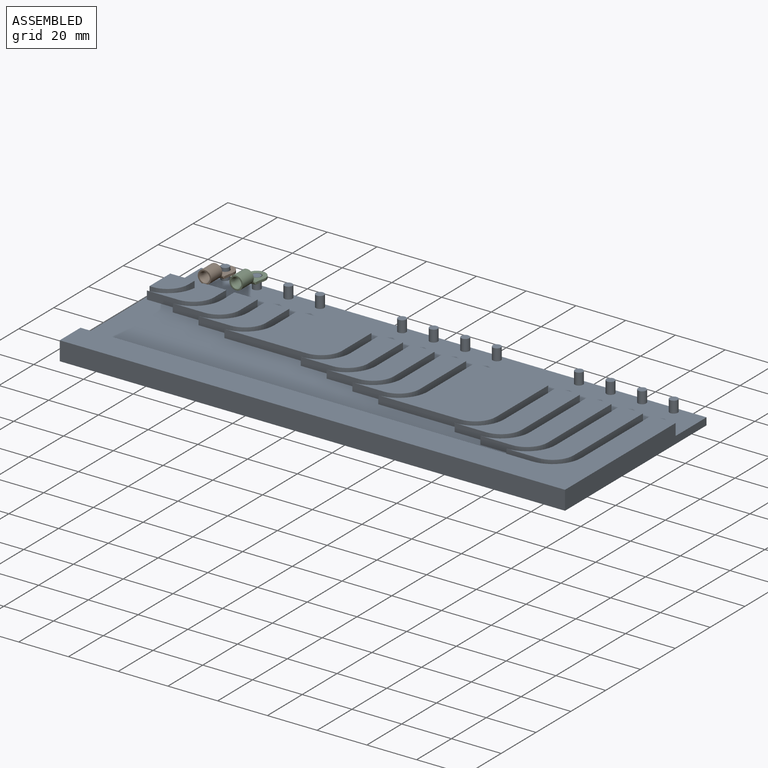
[diagram: assembled view]
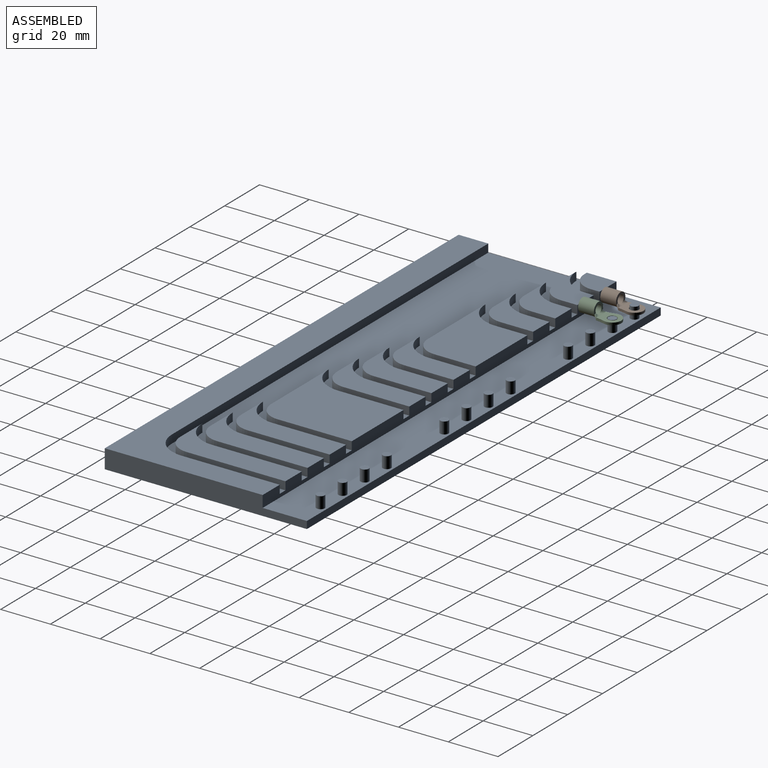
[diagram: assembled view, second angle]
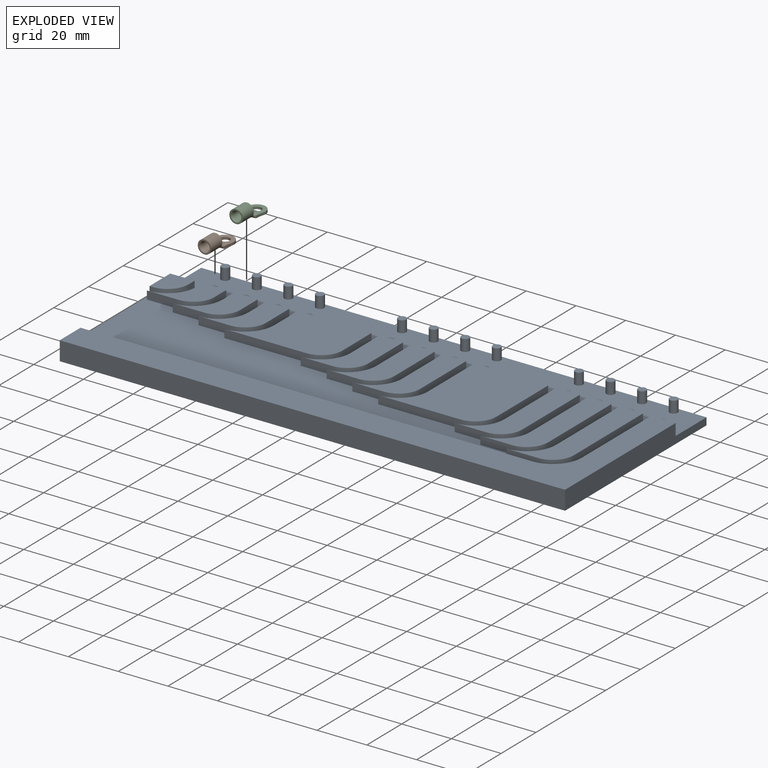
[diagram: exploded view]
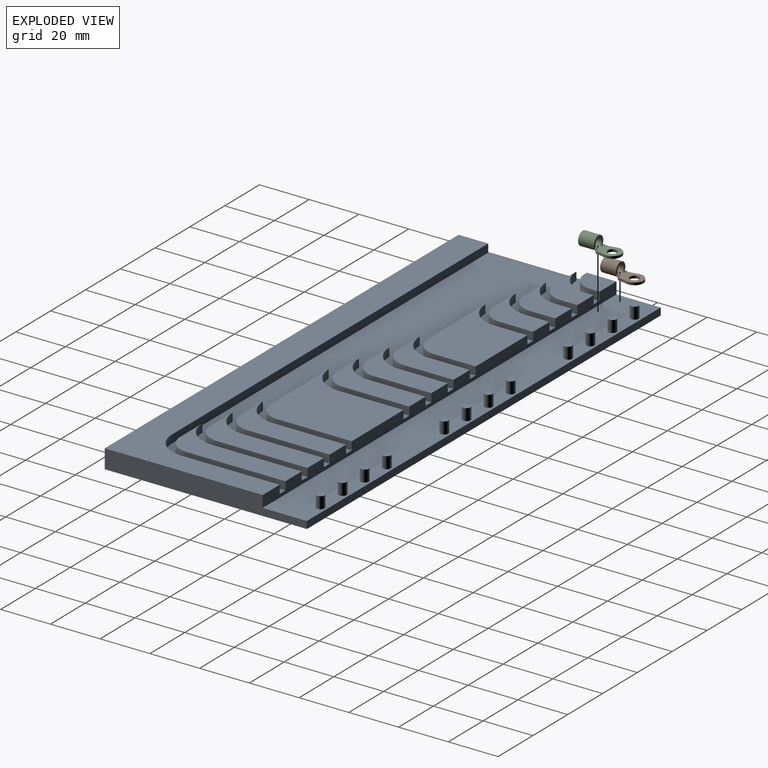
[diagram: exploded view, second angle]
ASSEMBLY  parts=3 mates=2
PART A: 106 faces, bbox 203.2x81.3x7.6 mm
  f0: plane 203.2x4.7mm, normal (0,1,0), area 824mm2, adj f1,f2,f3,f4,f5,f6,f7,f8
  f1: plane 81.28x7.62mm, normal (-1,0,0), area 405mm2, adj f0,f9,f14,f16,f17,f18,f19,f75
  f2: plane 48.26x21.21mm, normal (0,0,1), area 467.9mm2, adj f0,f71,f73,f74,f76,f78
  f3: plane 44.96x21.21mm, normal (0,0,1), area 436.9mm2, adj f0,f66,f68,f69,f70,f72
  f4: plane 41.66x21.21mm, normal (0,0,1), area 405.9mm2, adj f0,f61,f63,f64,f65,f67
  f5: plane 41.53x38.35mm, normal (0,0,1), area 1154.2mm2, adj f0,f56,f58,f59,f60,f62
  f6: plane 35.05x21.21mm, normal (0,0,1), area 343.8mm2, adj f0,f51,f53,f54,f55,f57
  f7: plane 31.75x21.21mm, normal (0,0,1), area 312.8mm2, adj f0,f46,f48,f49,f50,f52
  f8: plane 28.45x21.21mm, normal (0,0,1), area 281.8mm2, adj f0,f40,f42,f44,f45,f47
  f9: plane 203.2x63.5mm, normal (0,0,1), area 2960mm2, adj f0,f1,f14,f15,f75,f77,f79
  f10: plane 41.53x25.15mm, normal (0,0,1), area 761.7mm2, adj f0,f35,f37,f39,f41,f43
  f11: plane 21.21x18.54mm, normal (0,0,1), area 188.7mm2, adj f0,f25,f27,f29,f30,f32
  f12: plane 21.84x21.21mm, normal (0,0,1), area 219.7mm2, adj f0,f31,f33,f34,f36,f38
  f13: plane 21.21x15.24mm, normal (0,0,1), area 157.6mm2, adj f0,f20,f22,f24,f26,f28
  f14: plane 203.2x7.62mm, normal (0,-1,0), area 1548.4mm2, adj f1,f9,f15,f17
  f15: plane 81.28x7.62mm, normal (1,0,0), area 535.8mm2, adj f0,f9,f14,f17,f80,f81
  f16: plane 11.94x9.78mm, normal (0,0,1), area 101.2mm2, adj f0,f1,f19,f21,f23
  f17: plane 203.2x81.28mm, normal (0,0,-1), area 16516.1mm2, adj f1,f14,f15,f81
  f18: plane 193.42x51.56mm, normal (0,0,1), area 5111.1mm2, adj f0,f1,f19,f20,f21,f22,f23,f24
  f19: plane 3.3x1.27mm, normal (0,-1,0), area 4.2mm2, adj f1,f16,f18,f21
  f20: cylinder r=11.81mm len=11.81mm, axis (0,0,1), area 61.3mm2, adj f13,f18,f22,f24
  f21: cylinder r=8.51mm len=8.51mm, axis (0,0,1), area 44.1mm2, adj f16,f18,f19,f23
  f22: plane 3.43x3.3mm, normal (-1,0,0), area 11.3mm2, adj f0,f13,f18,f20
  f23: plane 3.43x3.3mm, normal (1,0,0), area 11.3mm2, adj f0,f16,f18,f21
  f24: plane 12.7x3.3mm, normal (0,-1,0), area 41.9mm2, adj f13,f18,f20,f26
  f25: cylinder r=11.81mm len=11.81mm, axis (0,0,1), area 61.3mm2, adj f11,f18,f27,f29
  f26: cylinder r=8.51mm len=8.51mm, axis (0,0,1), area 44.1mm2, adj f13,f18,f24,f28
  f27: plane 6.73x3.3mm, normal (-1,0,0), area 22.2mm2, adj f0,f11,f18,f25
  f28: plane 6.73x3.3mm, normal (1,0,0), area 22.2mm2, adj f0,f13,f18,f26
  f29: plane 12.7x3.3mm, normal (0,-1,0), area 41.9mm2, adj f11,f18,f25,f30
  f30: cylinder r=8.51mm len=8.51mm, axis (0,0,1), area 44.1mm2, adj f11,f18,f29,f32
  f31: cylinder r=11.81mm len=11.81mm, axis (0,0,1), area 61.3mm2, adj f12,f18,f33,f34
  f32: plane 10.03x3.3mm, normal (1,0,0), area 33.1mm2, adj f0,f11,f18,f30
  f33: plane 10.03x3.3mm, normal (-1,0,0), area 33.1mm2, adj f0,f12,f18,f31
  f34: plane 12.7x3.3mm, normal (0,-1,0), area 41.9mm2, adj f12,f18,f31,f36
  f35: cylinder r=11.81mm len=11.81mm, axis (0,0,1), area 61.3mm2, adj f10,f18,f37,f39
  f36: cylinder r=8.51mm len=8.51mm, axis (0,0,1), area 44.1mm2, adj f12,f18,f34,f38
  f37: plane 13.34x3.3mm, normal (-1,0,0), area 44mm2, adj f0,f10,f18,f35
  f38: plane 13.34x3.3mm, normal (1,0,0), area 44mm2, adj f0,f12,f18,f36
  f39: plane 33.02x3.3mm, normal (0,-1,0), area 109mm2, adj f10,f18,f35,f41
  f40: cylinder r=11.81mm len=11.81mm, axis (0,0,1), area 61.3mm2, adj f8,f18,f42,f44
  f41: cylinder r=8.51mm len=8.51mm, axis (0,0,1), area 44.1mm2, adj f10,f18,f39,f43
  f42: plane 16.64x3.3mm, normal (-1,0,0), area 54.9mm2, adj f0,f8,f18,f40
  f43: plane 16.64x3.3mm, normal (1,0,0), area 54.9mm2, adj f0,f10,f18,f41
  f44: plane 12.7x3.3mm, normal (0,-1,0), area 41.9mm2, adj f8,f18,f40,f45
  f45: cylinder r=8.51mm len=8.51mm, axis (0,0,1), area 44.1mm2, adj f8,f18,f44,f47
  f46: cylinder r=11.81mm len=11.81mm, axis (0,0,1), area 61.3mm2, adj f7,f18,f48,f49
  f47: plane 19.94x3.3mm, normal (1,0,0), area 65.8mm2, adj f0,f8,f18,f45
  f48: plane 19.94x3.3mm, normal (-1,0,0), area 65.8mm2, adj f0,f7,f18,f46
  f49: plane 12.7x3.3mm, normal (0,-1,0), area 41.9mm2, adj f7,f18,f46,f50
  f50: cylinder r=8.51mm len=8.51mm, axis (0,0,1), area 44.1mm2, adj f7,f18,f49,f52
  f51: cylinder r=11.81mm len=11.81mm, axis (0,0,1), area 61.3mm2, adj f6,f18,f53,f54
  f52: plane 23.24x3.3mm, normal (1,0,0), area 76.7mm2, adj f0,f7,f18,f50
  f53: plane 23.24x3.3mm, normal (-1,0,0), area 76.7mm2, adj f0,f6,f18,f51
  f54: plane 12.7x3.3mm, normal (0,-1,0), area 41.9mm2, adj f6,f18,f51,f55
  f55: cylinder r=8.51mm len=8.51mm, axis (0,0,1), area 44.1mm2, adj f6,f18,f54,f57
  f56: cylinder r=11.81mm len=11.81mm, axis (0,0,1), area 61.3mm2, adj f5,f18,f58,f59
  f57: plane 26.54x3.3mm, normal (1,0,0), area 87.6mm2, adj f0,f6,f18,f55
  f58: plane 26.54x3.3mm, normal (-1,0,0), area 87.6mm2, adj f0,f5,f18,f56
  f59: plane 33.02x3.3mm, normal (0,-1,0), area 109mm2, adj f5,f18,f56,f60
  f60: cylinder r=8.51mm len=8.51mm, axis (0,0,1), area 44.1mm2, adj f5,f18,f59,f62
  f61: cylinder r=11.81mm len=11.81mm, axis (0,0,1), area 61.3mm2, adj f4,f18,f63,f64
  f62: plane 29.85x3.3mm, normal (1,0,0), area 98.5mm2, adj f0,f5,f18,f60
  f63: plane 29.85x3.3mm, normal (-1,0,0), area 98.5mm2, adj f0,f4,f18,f61
  f64: plane 12.7x3.3mm, normal (0,-1,0), area 41.9mm2, adj f4,f18,f61,f65
  f65: cylinder r=8.51mm len=8.51mm, axis (0,0,1), area 44.1mm2, adj f4,f18,f64,f67
  f66: cylinder r=11.81mm len=11.81mm, axis (0,0,1), area 61.3mm2, adj f3,f18,f68,f69
  f67: plane 33.15x3.3mm, normal (1,0,0), area 109.5mm2, adj f0,f4,f18,f65
  f68: plane 33.15x3.3mm, normal (-1,0,0), area 109.5mm2, adj f0,f3,f18,f66
  f69: plane 12.7x3.3mm, normal (0,-1,0), area 41.9mm2, adj f3,f18,f66,f70
  f70: cylinder r=8.51mm len=8.51mm, axis (0,0,1), area 44.1mm2, adj f3,f18,f69,f72
  f71: cylinder r=11.81mm len=11.81mm, axis (0,0,1), area 61.3mm2, adj f2,f18,f73,f74
  f72: plane 36.45x3.3mm, normal (1,0,0), area 120.4mm2, adj f0,f3,f18,f70
  f73: plane 36.45x3.3mm, normal (-1,0,0), area 120.4mm2, adj f0,f2,f18,f71
  f74: plane 12.7x3.3mm, normal (0,-1,0), area 41.9mm2, adj f2,f18,f71,f76
  f75: plane 181.61x3.3mm, normal (0,1,0), area 599.7mm2, adj f1,f9,f18,f77
  f76: cylinder r=8.51mm len=8.51mm, axis (0,0,1), area 44.1mm2, adj f2,f18,f74,f78
  f77: cylinder r=11.81mm len=11.81mm, axis (0,0,1), area 61.3mm2, adj f9,f18,f75,f79
  f78: plane 39.75x3.3mm, normal (1,0,0), area 131.3mm2, adj f0,f2,f18,f76
  f79: plane 39.75x3.3mm, normal (-1,0,0), area 131.3mm2, adj f0,f9,f18,f77
  f80: plane 203.2x17.78mm, normal (0,0,1), area 3511.7mm2, adj f0,f1,f15,f81,f83,f85,f87,f89
  f81: plane 203.2x2.92mm, normal (0,1,0), area 593.5mm2, adj f1,f15,f17,f80
  f82: plane 3.28x3.28mm, normal (0,0,1), area 8.4mm2, adj f83
  f83: cylinder r=1.64mm len=4.7mm, axis (0,0,-1), area 48.4mm2, adj f80,f82
  f84: plane 3.28x3.28mm, normal (0,0,1), area 8.4mm2, adj f85
  f85: cylinder r=1.64mm len=4.7mm, axis (0,0,-1), area 48.4mm2, adj f80,f84
  f86: plane 3.28x3.28mm, normal (0,0,1), area 8.4mm2, adj f87
  f87: cylinder r=1.64mm len=4.7mm, axis (0,0,-1), area 48.4mm2, adj f80,f86
  f88: plane 3.28x3.28mm, normal (0,0,1), area 8.4mm2, adj f89
  f89: cylinder r=1.64mm len=4.7mm, axis (0,0,-1), area 48.4mm2, adj f80,f88
  f90: plane 3.28x3.28mm, normal (0,0,1), area 8.4mm2, adj f91
  f91: cylinder r=1.64mm len=4.7mm, axis (0,0,-1), area 48.4mm2, adj f80,f90
  f92: plane 3.28x3.28mm, normal (0,0,1), area 8.4mm2, adj f93
  f93: cylinder r=1.64mm len=4.7mm, axis (0,0,-1), area 48.4mm2, adj f80,f92
  f94: plane 3.28x3.28mm, normal (0,0,1), area 8.4mm2, adj f95
  f95: cylinder r=1.64mm len=4.7mm, axis (0,0,-1), area 48.4mm2, adj f80,f94
  f96: plane 3.28x3.28mm, normal (0,0,1), area 8.4mm2, adj f97
  f97: cylinder r=1.64mm len=4.7mm, axis (0,0,-1), area 48.4mm2, adj f80,f96
  f98: plane 3.28x3.28mm, normal (0,0,1), area 8.4mm2, adj f99
  f99: cylinder r=1.64mm len=4.7mm, axis (0,0,-1), area 48.4mm2, adj f80,f98
  f100: plane 3.28x3.28mm, normal (0,0,1), area 8.4mm2, adj f101
  f101: cylinder r=1.64mm len=4.7mm, axis (0,0,-1), area 48.4mm2, adj f80,f100
  f102: plane 3.28x3.28mm, normal (0,0,1), area 8.4mm2, adj f103
  f103: cylinder r=1.64mm len=4.7mm, axis (0,0,-1), area 48.4mm2, adj f80,f102
  f104: plane 3.28x3.28mm, normal (0,0,1), area 8.4mm2, adj f105
  f105: cylinder r=1.64mm len=4.7mm, axis (0,0,-1), area 48.4mm2, adj f80,f104
PART B: 15 faces, bbox 7.1x5.6x16 mm
  f0: plane 8.15x7.14mm, normal (0,-1,0), area 38.3mm2, adj f1,f3,f7,f8,f9
  f1: cylinder r=1.84mm len=3.68mm, axis (0,1,0), area 11.3mm2, adj f0,f2
  f2: plane 8.15x7.14mm, normal (0,1,0), area 38.3mm2, adj f1,f3,f5,f7,f8
  f3: cylinder r=19.18mm len=3.64mm, axis (0,1,0), area 3.6mm2, adj f0,f2,f4,f8
  f4: bspline ~2.03x1.31mm, area 1mm2, adj f3,f5,f9,f11
  f5: bspline ~5.89x1.16mm, area 5.2mm2, adj f2,f4,f6,f14
  f6: bspline ~2.03x1.31mm, area 1mm2, adj f5,f7,f9,f11
  f7: cylinder r=19.18mm len=3.64mm, axis (0,1,0), area 3.6mm2, adj f0,f2,f6,f8
  f8: cylinder r=3.57mm len=7.14mm, axis (0,1,0), area 12.8mm2, adj f0,f2,f3,f7
  f9: bspline ~5.78x1.79mm, area 6.5mm2, adj f0,f4,f6,f10
  f10: cylinder r=2.71mm len=6.35mm, axis (0,0,1), area 107.9mm2, adj f9,f11,f12
  f11: plane 5.41x3.88mm, normal (0,0,1), area 8.8mm2, adj f4,f6,f10,f14
  f12: plane 5.41x5.41mm, normal (0,0,-1), area 8.7mm2, adj f10,f13
  f13: torus R=4.5mm, axis (0,0,1), area 17.8mm2, adj f12,f14
  f14: cylinder r=1.73mm len=4.91mm, axis (0,0,1), area 53.2mm2, adj f5,f11,f13
PART C: same geometry as B
PLACE A rot(axis=(0.1,-0.94,-0.31),0deg) t=(-51.03,-0.99,-0.99)mm
PLACE B rot(axis=(0,0.71,0.71),180deg) t=(-141.2,46,4.36)mm
PLACE C rot(axis=(0,-0.71,-0.71),180deg) t=(-128.5,46,5.65)mm
MATE cylindrical B.f1 <-> A.f83  axis (0,0,1) through (-141.2,46,5.33)mm
MATE cylindrical C.f1 <-> A.f85  axis (0,0,1) through (-128.5,46,6.63)mm
